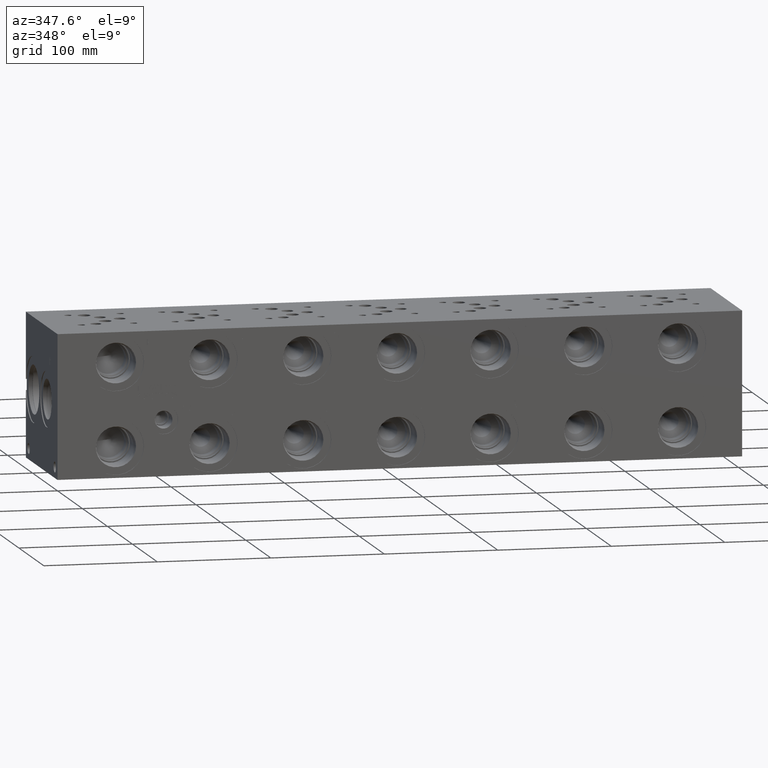
[diagram: clean part render]
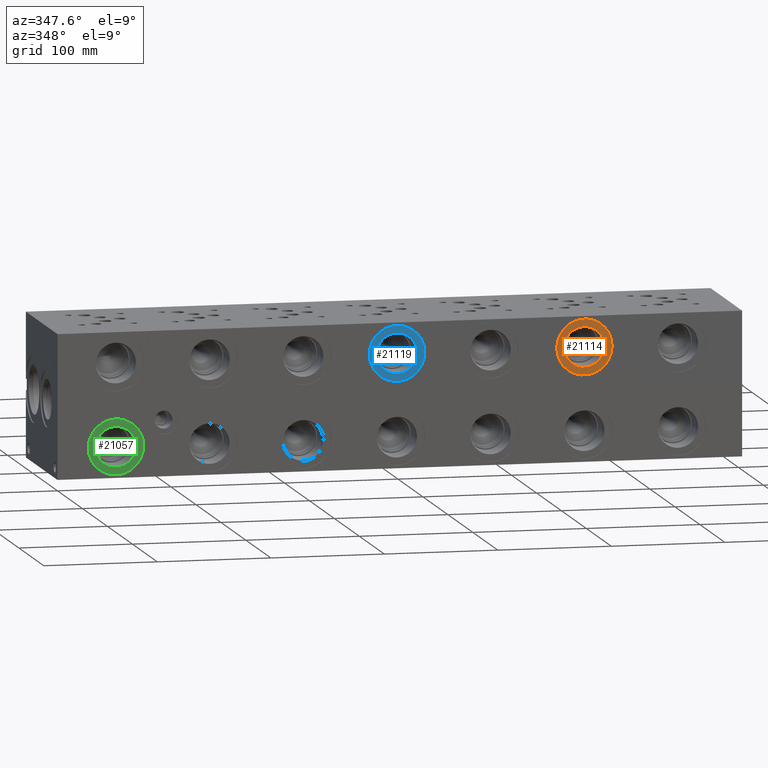
[diagram: same view with three faces highlighted in distinct colors, each labeled with its STEP entity id]
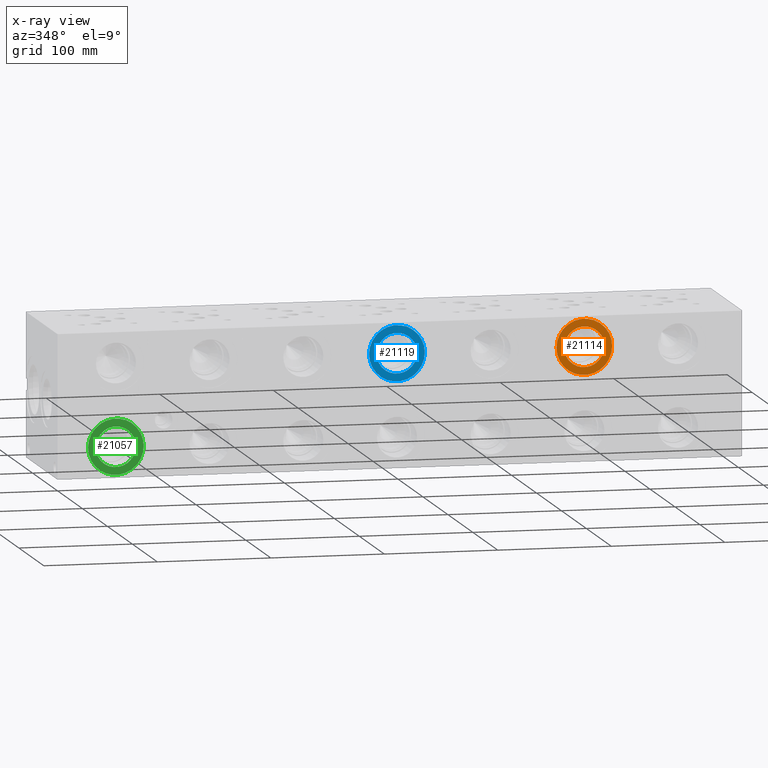
[diagram: x-ray of the same camera — body ghosted, the three highlighted faces saturated]
A machine part, auxiliary view with three faces highlighted in distinct colors.
The next image is the same camera in x-ray (body ghosted, the three faces saturated) — at least one of them is partly hidden behind the body in this view.
Their STEP definitions:

[orange] entity #21114 — the highlighted planar face has unit normal (0, -1, 0).
#620=CIRCLE('',#22266,24.4856);
#621=CIRCLE('',#22267,24.4856);
#622=CIRCLE('',#22268,17.7546);
#1244=FACE_BOUND('',#4099,.T.);
#2855=FACE_OUTER_BOUND('',#4098,.T.);
#4098=EDGE_LOOP('',(#17471,#17472));
#4099=EDGE_LOOP('',(#17473));
#9582=VERTEX_POINT('',#35662);
#9583=VERTEX_POINT('',#35663);
#9584=VERTEX_POINT('',#35666);
#12368=EDGE_CURVE('',#9582,#9583,#620,.T.);
#12369=EDGE_CURVE('',#9583,#9582,#621,.T.);
#12370=EDGE_CURVE('',#9584,#9584,#622,.T.);
#17471=ORIENTED_EDGE('',*,*,#12368,.T.);
#17472=ORIENTED_EDGE('',*,*,#12369,.T.);
#17473=ORIENTED_EDGE('',*,*,#12370,.F.);
#19595=PLANE('',#22265);
#21114=ADVANCED_FACE('',(#2855,#1244),#19595,.T.);
#22265=AXIS2_PLACEMENT_3D('',#35661,#26236,#26237);
#22266=AXIS2_PLACEMENT_3D('',#35664,#26238,#26239);
#22267=AXIS2_PLACEMENT_3D('',#35665,#26240,#26241);
#22268=AXIS2_PLACEMENT_3D('',#35667,#26242,#26243);
#26236=DIRECTION('center_axis',(0.,-1.,0.));
#26237=DIRECTION('ref_axis',(1.,0.,0.));
#26238=DIRECTION('center_axis',(0.,-1.,0.));
#26239=DIRECTION('ref_axis',(1.,0.,0.));
#26240=DIRECTION('center_axis',(0.,-1.,0.));
#26241=DIRECTION('ref_axis',(1.,0.,0.));
#26242=DIRECTION('center_axis',(0.,-1.,0.));
#26243=DIRECTION('ref_axis',(1.,0.,0.));
#35661=CARTESIAN_POINT('Origin',(464.3374,0.7874,100.0125));
#35662=CARTESIAN_POINT('',(488.823,0.7874,100.0125));
#35663=CARTESIAN_POINT('',(439.8518,0.7874,100.0125));
#35664=CARTESIAN_POINT('Origin',(464.3374,0.7874,100.0125));
#35665=CARTESIAN_POINT('Origin',(464.3374,0.7874,100.0125));
#35666=CARTESIAN_POINT('',(446.5828,0.7874,100.0125));
#35667=CARTESIAN_POINT('Origin',(464.3374,0.7874,100.0125));

[blue] entity #21119 — the highlighted planar face has unit normal (0, -1, 0).
#625=CIRCLE('',#22276,24.4856);
#626=CIRCLE('',#22277,24.4856);
#627=CIRCLE('',#22278,17.7546);
#1245=FACE_BOUND('',#4105,.T.);
#2860=FACE_OUTER_BOUND('',#4104,.T.);
#4104=EDGE_LOOP('',(#17492,#17493));
#4105=EDGE_LOOP('',(#17494));
#9588=VERTEX_POINT('',#35682);
#9589=VERTEX_POINT('',#35683);
#9590=VERTEX_POINT('',#35686);
#12377=EDGE_CURVE('',#9588,#9589,#625,.T.);
#12378=EDGE_CURVE('',#9589,#9588,#626,.T.);
#12379=EDGE_CURVE('',#9590,#9590,#627,.T.);
#17492=ORIENTED_EDGE('',*,*,#12377,.T.);
#17493=ORIENTED_EDGE('',*,*,#12378,.T.);
#17494=ORIENTED_EDGE('',*,*,#12379,.F.);
#19596=PLANE('',#22275);
#21119=ADVANCED_FACE('',(#2860,#1245),#19596,.T.);
#22275=AXIS2_PLACEMENT_3D('',#35681,#26260,#26261);
#22276=AXIS2_PLACEMENT_3D('',#35684,#26262,#26263);
#22277=AXIS2_PLACEMENT_3D('',#35685,#26264,#26265);
#22278=AXIS2_PLACEMENT_3D('',#35687,#26266,#26267);
#26260=DIRECTION('center_axis',(0.,-1.,0.));
#26261=DIRECTION('ref_axis',(1.,0.,0.));
#26262=DIRECTION('center_axis',(0.,-1.,0.));
#26263=DIRECTION('ref_axis',(1.,0.,0.));
#26264=DIRECTION('center_axis',(0.,-1.,0.));
#26265=DIRECTION('ref_axis',(1.,0.,0.));
#26266=DIRECTION('center_axis',(0.,-1.,0.));
#26267=DIRECTION('ref_axis',(1.,0.,0.));
#35681=CARTESIAN_POINT('Origin',(299.2374,0.7874,100.0125));
#35682=CARTESIAN_POINT('',(323.723,0.7874,100.0125));
#35683=CARTESIAN_POINT('',(274.7518,0.7874,100.0125));
#35684=CARTESIAN_POINT('Origin',(299.2374,0.7874,100.0125));
#35685=CARTESIAN_POINT('Origin',(299.2374,0.7874,100.0125));
#35686=CARTESIAN_POINT('',(281.4828,0.7874,100.0125));
#35687=CARTESIAN_POINT('Origin',(299.2374,0.7874,100.0125));

[green] entity #21057 — the highlighted planar face has unit normal (0, 1, 0).
#522=CIRCLE('',#22110,24.4856);
#523=CIRCLE('',#22111,24.4856);
#524=CIRCLE('',#22113,17.7546);
#525=CIRCLE('',#22114,17.7546);
#1240=FACE_BOUND('',#4038,.T.);
#2798=FACE_OUTER_BOUND('',#4037,.T.);
#4037=EDGE_LOOP('',(#17200,#17201));
#4038=EDGE_LOOP('',(#17202,#17203));
#9480=VERTEX_POINT('',#35350);
#9481=VERTEX_POINT('',#35352);
#9482=VERTEX_POINT('',#35356);
#9483=VERTEX_POINT('',#35357);
#12217=EDGE_CURVE('',#9480,#9481,#522,.T.);
#12218=EDGE_CURVE('',#9481,#9480,#523,.T.);
#12219=EDGE_CURVE('',#9482,#9483,#524,.T.);
#12220=EDGE_CURVE('',#9483,#9482,#525,.T.);
#17200=ORIENTED_EDGE('',*,*,#12218,.F.);
#17201=ORIENTED_EDGE('',*,*,#12217,.F.);
#17202=ORIENTED_EDGE('',*,*,#12219,.T.);
#17203=ORIENTED_EDGE('',*,*,#12220,.T.);
#19591=PLANE('',#22112);
#21057=ADVANCED_FACE('',(#2798,#1240),#19591,.F.);
#22110=AXIS2_PLACEMENT_3D('',#35353,#25873,#25874);
#22111=AXIS2_PLACEMENT_3D('',#35354,#25875,#25876);
#22112=AXIS2_PLACEMENT_3D('',#35355,#25877,#25878);
#22113=AXIS2_PLACEMENT_3D('',#35358,#25879,#25880);
#22114=AXIS2_PLACEMENT_3D('',#35359,#25881,#25882);
#25873=DIRECTION('center_axis',(0.,1.,0.));
#25874=DIRECTION('ref_axis',(1.,0.,0.));
#25875=DIRECTION('center_axis',(0.,1.,0.));
#25876=DIRECTION('ref_axis',(1.,0.,0.));
#25877=DIRECTION('center_axis',(0.,1.,0.));
#25878=DIRECTION('ref_axis',(0.,0.,1.));
#25879=DIRECTION('center_axis',(0.,1.,0.));
#25880=DIRECTION('ref_axis',(1.,0.,0.));
#25881=DIRECTION('center_axis',(0.,1.,0.));
#25882=DIRECTION('ref_axis',(1.,0.,0.));
#35350=CARTESIAN_POINT('',(27.1018,0.7874,26.9748));
#35352=CARTESIAN_POINT('',(76.073,0.7874,26.9748));
#35353=CARTESIAN_POINT('Origin',(51.5874,0.7874,26.9748));
#35354=CARTESIAN_POINT('Origin',(51.5874,0.7874,26.9748));
#35355=CARTESIAN_POINT('Origin',(69.342,0.7874,26.9748));
#35356=CARTESIAN_POINT('',(69.342,0.7874,26.9748));
#35357=CARTESIAN_POINT('',(33.8328,0.787399999999998,26.9748));
#35358=CARTESIAN_POINT('Origin',(51.5874,0.7874,26.9748));
#35359=CARTESIAN_POINT('Origin',(51.5874,0.7874,26.9748));